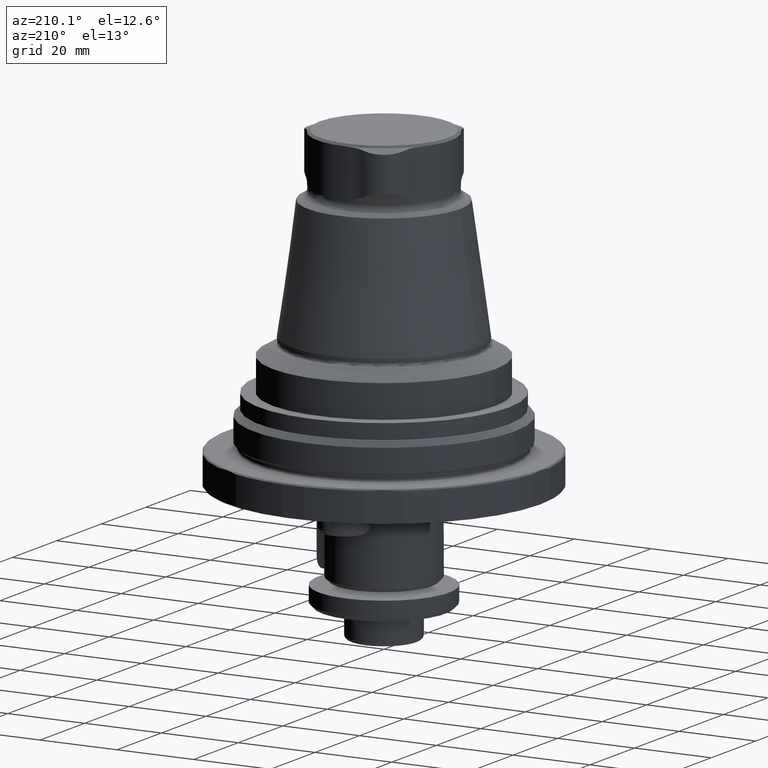
[diagram: clean part render]
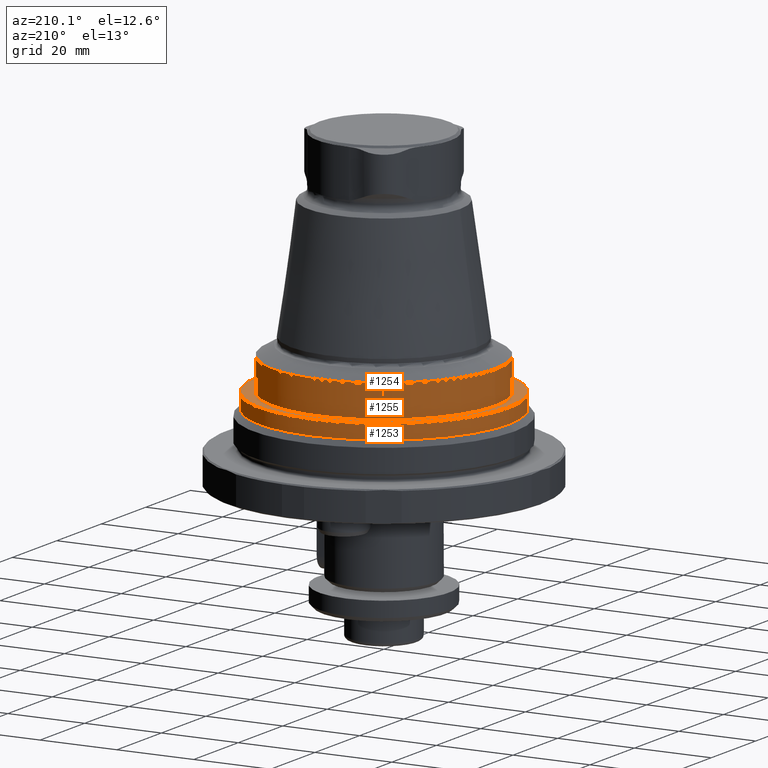
[diagram: same view with one multi-face feature highlighted, each face labeled with its STEP entity id]
A machine part, auxiliary view. The highlighted faces form ONE feature: a stepped (counterbored) hole: 2 coaxial cylindrical walls of radii 29 -> 32.48 mm joined by 1 annular planar shoulder face(s). The faces share edges in the B-rep.
Their STEP definitions:
[1] entity #1253 (Cylinder):
#207=CYLINDRICAL_SURFACE('',#1420,32.48);
#553=ORIENTED_EDGE('',*,*,#720,.T.);
#554=ORIENTED_EDGE('',*,*,#560,.T.);
#560=EDGE_CURVE('',#723,#723,#843,.F.);
#720=EDGE_CURVE('',#840,#840,#911,.T.);
#723=VERTEX_POINT('',#1788);
#840=VERTEX_POINT('',#2319);
#843=CIRCLE('',#1271,32.48);
#911=CIRCLE('',#1421,32.48);
#1032=EDGE_LOOP('',(#553));
#1033=EDGE_LOOP('',(#554));
#1157=FACE_BOUND('',#1032,.T.);
#1158=FACE_BOUND('',#1033,.T.);
#1253=ADVANCED_FACE('',(#1157,#1158),#207,.T.);
#1271=AXIS2_PLACEMENT_3D('',#1787,#1431,#1432);
#1420=AXIS2_PLACEMENT_3D('',#2317,#1773,#1774);
#1421=AXIS2_PLACEMENT_3D('',#2318,#1775,#1776);
#1431=DIRECTION('',(2.37516272644386E-69,1.04225259501902E-17,-1.));
#1432=DIRECTION('',(0.,1.,1.04225259501902E-17));
#1773=DIRECTION('',(-7.81689446264269E-18,2.60563148754756E-18,-1.));
#1774=DIRECTION('',(-1.,6.12303176911189E-17,7.81689446264269E-18));
#1775=DIRECTION('',(-7.81689446264268E-18,6.38359491786664E-17,-1.));
#1776=DIRECTION('',(-1.,6.12303176911189E-17,7.81689446264269E-18));
#1787=CARTESIAN_POINT('',(7.88665112559661E-15,4.71357481838021E-19,8.55477512034116));
#1788=CARTESIAN_POINT('',(7.88665112559661E-15,32.48,8.55477512034116));
#2317=CARTESIAN_POINT('',(7.90173773190951E-15,-5.02886877096708E-18,10.53));
#2318=CARTESIAN_POINT('',(7.91682433822241E-15,-1.00577375419341E-17,12.46));
#2319=CARTESIAN_POINT('',(-32.48,1.97870298106561E-15,12.46));
[2] entity #1254 (Cylinder):
#208=CYLINDRICAL_SURFACE('',#1422,29.);
#555=ORIENTED_EDGE('',*,*,#719,.T.);
#556=ORIENTED_EDGE('',*,*,#721,.F.);
#719=EDGE_CURVE('',#839,#839,#910,.T.);
#721=EDGE_CURVE('',#841,#841,#912,.T.);
#839=VERTEX_POINT('',#2316);
#841=VERTEX_POINT('',#2322);
#910=CIRCLE('',#1419,29.);
#912=CIRCLE('',#1423,29.);
#1034=EDGE_LOOP('',(#555));
#1035=EDGE_LOOP('',(#556));
#1159=FACE_BOUND('',#1034,.T.);
#1160=FACE_BOUND('',#1035,.T.);
#1254=ADVANCED_FACE('',(#1159,#1160),#208,.T.);
#1419=AXIS2_PLACEMENT_3D('',#2315,#1771,#1772);
#1422=AXIS2_PLACEMENT_3D('',#2320,#1777,#1778);
#1423=AXIS2_PLACEMENT_3D('',#2321,#1779,#1780);
#1771=DIRECTION('',(1.22461692971323E-16,-7.49836836562635E-33,-1.));
#1772=DIRECTION('',(-1.,6.12303176911189E-17,-1.22461692971323E-16));
#1777=DIRECTION('',(1.22461692971323E-16,-7.49836836562635E-33,-1.));
#1778=DIRECTION('',(-1.,6.12303176911189E-17,-1.22461692971323E-16));
#1779=DIRECTION('',(1.22461692971323E-16,-7.49836836562635E-33,-1.));
#1780=DIRECTION('',(-1.,6.12303176911189E-17,-1.22461692971323E-16));
#2315=CARTESIAN_POINT('',(6.37646553852014E-15,-3.9043301067006E-31,20.9319019232415));
#2316=CARTESIAN_POINT('',(-29.,1.77567921304245E-15,20.9319019232415));
#2320=CARTESIAN_POINT('',(0.,0.,73.0009643688614));
#2321=CARTESIAN_POINT('',(7.4139489907273E-15,-4.53958452047983E-31,12.46));
#2322=CARTESIAN_POINT('',(-29.,1.77567921304245E-15,12.46));
[3] entity #1255 (Plane):
#232=PLANE('',#1424);
#557=ORIENTED_EDGE('',*,*,#720,.F.);
#558=ORIENTED_EDGE('',*,*,#721,.T.);
#720=EDGE_CURVE('',#840,#840,#911,.T.);
#721=EDGE_CURVE('',#841,#841,#912,.T.);
#840=VERTEX_POINT('',#2319);
#841=VERTEX_POINT('',#2322);
#911=CIRCLE('',#1421,32.48);
#912=CIRCLE('',#1423,29.);
#1036=EDGE_LOOP('',(#557));
#1037=EDGE_LOOP('',(#558));
#1161=FACE_BOUND('',#1036,.T.);
#1162=FACE_BOUND('',#1037,.T.);
#1255=ADVANCED_FACE('',(#1161,#1162),#232,.T.);
#1421=AXIS2_PLACEMENT_3D('',#2318,#1775,#1776);
#1423=AXIS2_PLACEMENT_3D('',#2321,#1779,#1780);
#1424=AXIS2_PLACEMENT_3D('',#2323,#1781,#1782);
#1775=DIRECTION('',(-7.81689446264268E-18,6.38359491786664E-17,-1.));
#1776=DIRECTION('',(-1.,6.12303176911189E-17,7.81689446264269E-18));
#1779=DIRECTION('',(1.22461692971323E-16,-7.49836836562635E-33,-1.));
#1780=DIRECTION('',(-1.,6.12303176911189E-17,-1.22461692971323E-16));
#1781=DIRECTION('',(7.81689446264268E-18,-6.38359491786664E-17,1.));
#1782=DIRECTION('',(6.12303176911189E-17,1.,6.38359491786664E-17));
#2318=CARTESIAN_POINT('',(7.91682433822241E-15,-1.00577375419341E-17,12.46));
#2319=CARTESIAN_POINT('',(-32.48,1.97870298106561E-15,12.46));
#2321=CARTESIAN_POINT('',(7.4139489907273E-15,-4.53958452047983E-31,12.46));
#2322=CARTESIAN_POINT('',(-29.,1.77567921304245E-15,12.46));
#2323=CARTESIAN_POINT('',(7.91682433822241E-15,-1.00577375419341E-17,12.46));